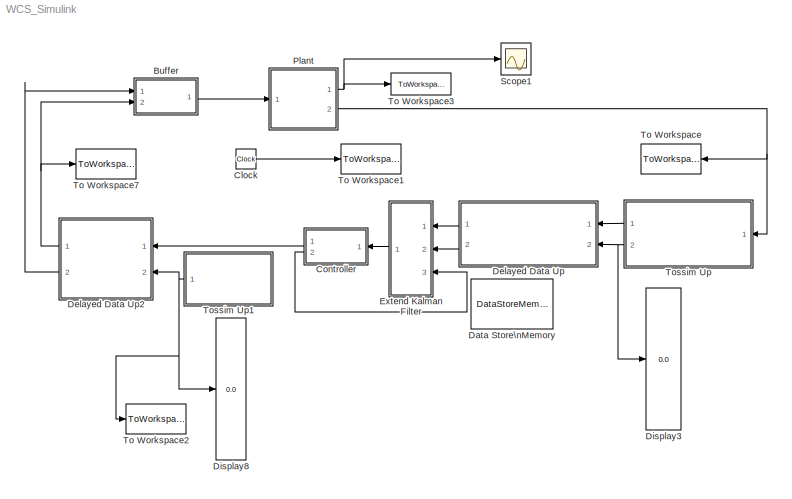
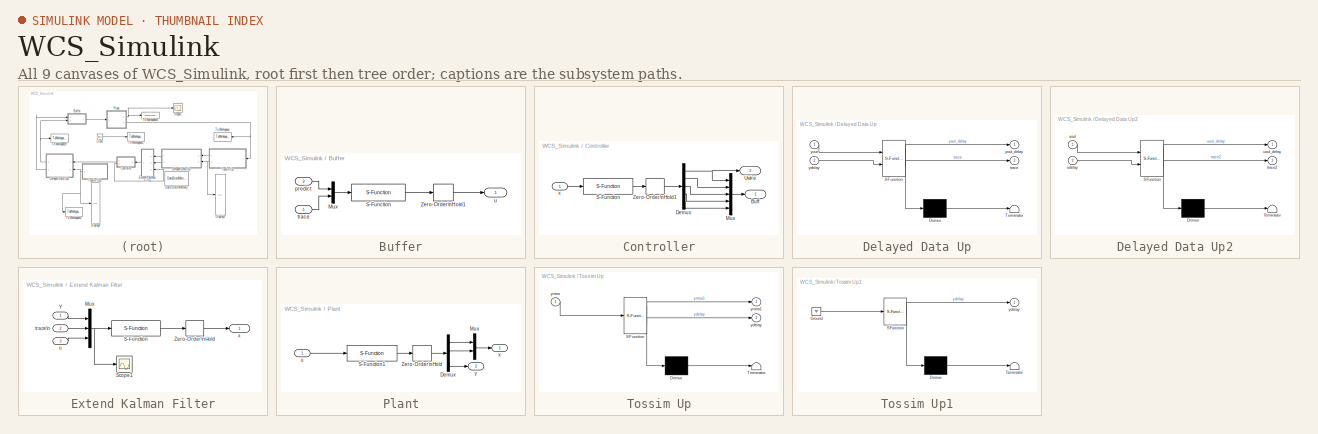
[diagram: thumbnail index - all 9 canvases of the model, root first then tree order]
MODEL WCS_Simulink
KIND model
BLOCK [SubSystem] Buffer
  FunctionWithSeparateData = off
  MaskHideContents = off
  MinAlgLoopOccurrences = off
  Opaque = off
  Ports = [2, 1]
  PropExecContextOutsideSubsystem = off
  RTWSystemCode = Auto
  RequestExecContextInheritance = off
  SID = 448
BLOCK [Mux] Buffer/Mux
  DisplayOption = bar
  Inputs = 2
  Ports = [2, 1]
  SID = 454
BLOCK [S-Function] Buffer/S-Function
  EnableBusSupport = off
  FunctionName = buffsfun
  Ports = [1, 1]
  SID = 450
BLOCK [ZeroOrderHold] Buffer/Zero-Order\nHold1
  SID = 451
  SampleTime = delta_t
BLOCK [Inport] Buffer/predict
  IconDisplay = Port number
  Port = 2
  SID = 449
BLOCK [Inport] Buffer/trace
  IconDisplay = Port number
  SID = 453
BLOCK [Outport] Buffer/u
  IconDisplay = Port number
  SID = 452
BLOCK [Clock] Clock
  SID = 163
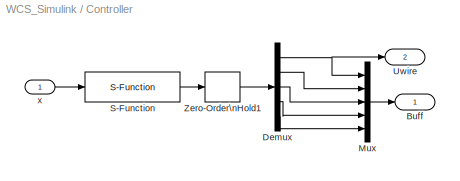
BLOCK [SubSystem] Controller
  FunctionWithSeparateData = off
  MaskHideContents = off
  MinAlgLoopOccurrences = off
  Opaque = off
  Ports = [1, 2]
  PropExecContextOutsideSubsystem = off
  RTWSystemCode = Auto
  RequestExecContextInheritance = off
  SID = 423
BLOCK [Outport] Controller/Buff
  IconDisplay = Port number
  SID = 445
BLOCK [Demux] Controller/Demux
  DisplayOption = bar
  Outputs = 5
  Ports = [1, 5]
  SID = 446
BLOCK [Mux] Controller/Mux
  DisplayOption = bar
  Inputs = 5
  Ports = [5, 1]
  SID = 447
BLOCK [S-Function] Controller/S-Function
  EnableBusSupport = off
  FunctionName = MPCControllersfun
  Parameters = A,B,C,T,uini,Xsp,delta_t
  Ports = [1, 1]
  SID = 426
BLOCK [Outport] Controller/Uwire
  IconDisplay = Port number
  Port = 2
  SID = 429
BLOCK [ZeroOrderHold] Controller/Zero-Order\nHold1
  SID = 428
  SampleTime = delta_t
BLOCK [Inport] Controller/x
  IconDisplay = Port number
  SID = 424
BLOCK [DataStoreMemory] Data Store\nMemory
  DataStoreName = ydelay_global
  InitialValue = [1; 1; 1; 1; 1; 1; 1; 1; 1; 1; 1; 1; 1; 1; 1]
  OutDataTypeStr = uint32
  ReadBeforeWriteMsg = warning
  SID = 294
  SignalType = real
  WriteAfterReadMsg = warning
  WriteAfterWriteMsg = warning
BLOCK [SubSystem] Delayed Data Up
  ErrorFcn = Stateflow.Translate.translate
  FunctionWithSeparateData = off
  MaskHideContents = off
  MinAlgLoopOccurrences = off
  Opaque = off
  PermitHierarchicalResolution = ExplicitOnly
  Ports = [2, 2]
  PropExecContextOutsideSubsystem = off
  RTWSystemCode = Auto
  RequestExecContextInheritance = off
  SFBlockType = MATLAB Function
  SID = 193
  TreatAsAtomicUnit = on
BLOCK [Demux] Delayed Data Up/ Demux 
  Outputs = 1
  Ports = [1, 1]
  SID = 193::39
BLOCK [S-Function] Delayed Data Up/ SFunction 
  EnableBusSupport = on
  FunctionName = sf_sfun
  Parameters = structure
  PortCounts = [2 3]
  Ports = [2, 3]
  SID = 193::38
  Tag = Stateflow S-Function WCS_Simulink 2
BLOCK [Terminator] Delayed Data Up/ Terminator 
  SID = 193::40
BLOCK [Outport] Delayed Data Up/trace
  IconDisplay = Port number
  Port = 2
  SID = 193::41
BLOCK [Inport] Delayed Data Up/ydelay
  IconDisplay = Port number
  Port = 2
  SID = 193::24
BLOCK [Inport] Delayed Data Up/yout
  IconDisplay = Port number
  SID = 193::1
BLOCK [Outport] Delayed Data Up/yout_delay
  IconDisplay = Port number
  SID = 193::5
BLOCK [SubSystem] Delayed Data Up2
  ErrorFcn = Stateflow.Translate.translate
  FunctionWithSeparateData = off
  MaskHideContents = off
  MinAlgLoopOccurrences = off
  Opaque = off
  PermitHierarchicalResolution = ExplicitOnly
  Ports = [2, 2]
  PropExecContextOutsideSubsystem = off
  RTWSystemCode = Auto
  RequestExecContextInheritance = off
  SFBlockType = MATLAB Function
  SID = 291
  TreatAsAtomicUnit = on
BLOCK [Demux] Delayed Data Up2/ Demux 
  Outputs = 1
  Ports = [1, 1]
  SID = 291::43
BLOCK [S-Function] Delayed Data Up2/ SFunction 
  EnableBusSupport = on
  FunctionName = sf_sfun
  PortCounts = [2 3]
  Ports = [2, 3]
  SID = 291::42
  Tag = Stateflow S-Function WCS_Simulink 4
BLOCK [Terminator] Delayed Data Up2/ Terminator 
  SID = 291::44
BLOCK [Outport] Delayed Data Up2/trace2
  IconDisplay = Port number
  Port = 2
  SID = 291::45
BLOCK [Inport] Delayed Data Up2/udelay
  IconDisplay = Port number
  Port = 2
  SID = 291::34
BLOCK [Inport] Delayed Data Up2/uout
  IconDisplay = Port number
  SID = 291::1
BLOCK [Outport] Delayed Data Up2/uout_delay
  IconDisplay = Port number
  SID = 291::5
BLOCK [Display] Display3
  Decimation = 1
  Lockdown = off
  Ports = [1]
  SID = 195
BLOCK [Display] Display8
  Decimation = 1
  Lockdown = off
  Ports = [1]
  SID = 295
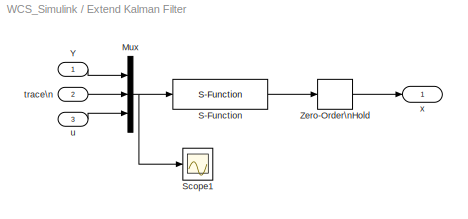
BLOCK [SubSystem] Extend Kalman Filter
  FunctionWithSeparateData = off
  MaskHideContents = off
  MinAlgLoopOccurrences = off
  Opaque = off
  Ports = [3, 1]
  PropExecContextOutsideSubsystem = off
  RTWSystemCode = Auto
  RequestExecContextInheritance = off
  SID = 415
BLOCK [Mux] Extend Kalman Filter/Mux
  DisplayOption = bar
  Inputs = 3
  Ports = [3, 1]
  SID = 418
BLOCK [S-Function] Extend Kalman Filter/S-Function
  EnableBusSupport = off
  FunctionName = EKFsfun
  Parameters = A,B,C,T,delta_t
  Ports = [1, 1]
  SID = 419
BLOCK [Scope] Extend Kalman Filter/Scope1
  DataFormat = StructureWithTime
  Floating = off
  NumInputPorts = 1
  Ports = [1]
  SID = 420
  SampleTime = 0
  SaveName = ScopeData2
  ShowLegends = off
BLOCK [Inport] Extend Kalman Filter/Y
  IconDisplay = Port number
  SID = 416
BLOCK [ZeroOrderHold] Extend Kalman Filter/Zero-Order\nHold
  SID = 421
  SampleTime = delta_t
BLOCK [Inport] Extend Kalman Filter/trace\n
  IconDisplay = Port number
  Port = 2
  SID = 432
BLOCK [Inport] Extend Kalman Filter/u
  IconDisplay = Port number
  Port = 3
  SID = 417
BLOCK [Outport] Extend Kalman Filter/x
  IconDisplay = Port number
  SID = 422
BLOCK [SubSystem] Plant
  FunctionWithSeparateData = off
  MaskHideContents = off
  MinAlgLoopOccurrences = off
  Opaque = off
  Ports = [1, 2]
  PropExecContextOutsideSubsystem = off
  RTWSystemCode = Auto
  RequestExecContextInheritance = off
  SID = 405
BLOCK [Demux] Plant/Demux
  DisplayOption = bar
  Outputs = 3
  Ports = [1, 3]
  SID = 407
BLOCK [Mux] Plant/Mux
  DisplayOption = bar
  Inputs = 2
  Ports = [2, 1]
  SID = 408
BLOCK [S-Function] Plant/S-Function1
  EnableBusSupport = off
  FunctionName = LinearModelSfun
  Parameters = A,B,C,T,Xini
  Ports = [1, 1]
  SID = 409
BLOCK [ZeroOrderHold] Plant/Zero-Order\nHold
  SID = 410
  SampleTime = delta_t
BLOCK [Inport] Plant/u
  IconDisplay = Port number
  SID = 406
BLOCK [Outport] Plant/x
  IconDisplay = Port number
  SID = 411
BLOCK [Outport] Plant/y
  IconDisplay = Port number
  Port = 2
  SID = 412
BLOCK [Scope] Scope1
  DataFormat = StructureWithTime
  Floating = off
  NumInputPorts = 1
  Ports = [1]
  SID = 413
  SampleTime = 0
  SaveName = ScopeData1
  ShowLegends = off
BLOCK [ToWorkspace] To Workspace
  MaxDataPoints = inf
  Ports = [1]
  SID = 348
  SampleTime = -1
  VariableName = YOUT
BLOCK [ToWorkspace] To Workspace1
  MaxDataPoints = inf
  Ports = [1]
  SID = 164
  SampleTime = -1
  VariableName = TIME
BLOCK [ToWorkspace] To Workspace2
  MaxDataPoints = inf
  Ports = [1]
  SID = 455
  SampleTime = -1
  VariableName = TRACE
BLOCK [ToWorkspace] To Workspace3
  MaxDataPoints = inf
  Ports = [1]
  SID = 414
  SampleTime = -1
  VariableName = XOUT
BLOCK [ToWorkspace] To Workspace7
  MaxDataPoints = inf
  Ports = [1]
  SID = 352
  SampleTime = -1
  VariableName = UOUT
BLOCK [SubSystem] Tossim Up
  ErrorFcn = Stateflow.Translate.translate
  FunctionWithSeparateData = off
  MaskHideContents = off
  MinAlgLoopOccurrences = off
  Opaque = off
  PermitHierarchicalResolution = ExplicitOnly
  Ports = [1, 2]
  PropExecContextOutsideSubsystem = off
  RTWSystemCode = Auto
  RequestExecContextInheritance = off
  SFBlockType = MATLAB Function
  SID = 194
  TreatAsAtomicUnit = on
BLOCK [Demux] Tossim Up/ Demux 
  Outputs = 1
  Ports = [1, 1]
  SID = 194::37
BLOCK [S-Function] Tossim Up/ SFunction 
  EnableBusSupport = on
  FunctionName = sf_sfun
  PortCounts = [1 3]
  Ports = [1, 3]
  SID = 194::36
  Tag = Stateflow S-Function WCS_Simulink 1
BLOCK [Terminator] Tossim Up/ Terminator 
  SID = 194::38
BLOCK [Outport] Tossim Up/ydelay
  IconDisplay = Port number
  Port = 2
  SID = 194::20
BLOCK [Inport] Tossim Up/ymea
  IconDisplay = Port number
  SID = 194::1
BLOCK [Outport] Tossim Up/ymea1
  IconDisplay = Port number
  SID = 194::22
BLOCK [SubSystem] Tossim Up1
  ErrorFcn = Stateflow.Translate.translate
  FunctionWithSeparateData = off
  MaskHideContents = off
  MinAlgLoopOccurrences = off
  Opaque = off
  PermitHierarchicalResolution = ExplicitOnly
  Ports = [0, 1]
  PropExecContextOutsideSubsystem = off
  RTWSystemCode = Auto
  RequestExecContextInheritance = off
  SFBlockType = MATLAB Function
  SID = 292
  TreatAsAtomicUnit = on
BLOCK [Demux] Tossim Up1/ Demux 
  Outputs = 1
  Ports = [1, 1]
  SID = 292::38
BLOCK [Ground] Tossim Up1/ Ground 
  SID = 292::42
BLOCK [S-Function] Tossim Up1/ SFunction 
  EnableBusSupport = on
  FunctionName = sf_sfun
  PortCounts = [1 2]
  Ports = [1, 2]
  SID = 292::37
  Tag = Stateflow S-Function WCS_Simulink 5
BLOCK [Terminator] Tossim Up1/ Terminator 
  SID = 292::39
BLOCK [Outport] Tossim Up1/ydelay
  IconDisplay = Port number
  SID = 292::20
LINE Buffer/Mux:1 -> Buffer/S-Function:1
LINE Buffer/S-Function:1 -> Buffer/Zero-Order\nHold1:1
LINE Buffer/Zero-Order\nHold1:1 -> Buffer/u:1
LINE Buffer/predict:1 -> Buffer/Mux:1
LINE Buffer/trace:1 -> Buffer/Mux:2
LINE Buffer:1 -> Plant:1
LINE Clock:1 -> To Workspace1:1
NET Controller/Demux:1 -> Controller/Mux:1, Controller/Uwire:1
LINE Controller/Demux:2 -> Controller/Mux:2
LINE Controller/Demux:3 -> Controller/Mux:3
LINE Controller/Demux:4 -> Controller/Mux:4
LINE Controller/Demux:5 -> Controller/Mux:5
LINE Controller/Mux:1 -> Controller/Buff:1
LINE Controller/S-Function:1 -> Controller/Zero-Order\nHold1:1
LINE Controller/Zero-Order\nHold1:1 -> Controller/Demux:1
LINE Controller/x:1 -> Controller/S-Function:1
LINE Controller:1 -> Delayed Data Up2:1
LINE Controller:2 -> Extend Kalman Filter:3
LINE Delayed Data Up/ Demux :1 -> Delayed Data Up/ Terminator :1
LINE Delayed Data Up/ SFunction :1 -> Delayed Data Up/ Demux :1
LINE Delayed Data Up/ SFunction :2 -> Delayed Data Up/yout_delay:1
LINE Delayed Data Up/ SFunction :3 -> Delayed Data Up/trace:1
LINE Delayed Data Up/ydelay:1 -> Delayed Data Up/ SFunction :2
LINE Delayed Data Up/yout:1 -> Delayed Data Up/ SFunction :1
LINE Delayed Data Up2/ Demux :1 -> Delayed Data Up2/ Terminator :1
LINE Delayed Data Up2/ SFunction :1 -> Delayed Data Up2/ Demux :1
LINE Delayed Data Up2/ SFunction :2 -> Delayed Data Up2/uout_delay:1
LINE Delayed Data Up2/ SFunction :3 -> Delayed Data Up2/trace2:1
LINE Delayed Data Up2/udelay:1 -> Delayed Data Up2/ SFunction :2
LINE Delayed Data Up2/uout:1 -> Delayed Data Up2/ SFunction :1
NET Delayed Data Up2:1 -> Buffer:2, To Workspace7:1
LINE Delayed Data Up2:2 -> Buffer:1
LINE Delayed Data Up:1 -> Extend Kalman Filter:1
LINE Delayed Data Up:2 -> Extend Kalman Filter:2
NET Extend Kalman Filter/Mux:1 -> Extend Kalman Filter/S-Function:1, Extend Kalman Filter/Scope1:1
LINE Extend Kalman Filter/S-Function:1 -> Extend Kalman Filter/Zero-Order\nHold:1
LINE Extend Kalman Filter/Y:1 -> Extend Kalman Filter/Mux:1
LINE Extend Kalman Filter/Zero-Order\nHold:1 -> Extend Kalman Filter/x:1
LINE Extend Kalman Filter/trace\n:1 -> Extend Kalman Filter/Mux:2
LINE Extend Kalman Filter/u:1 -> Extend Kalman Filter/Mux:3
LINE Extend Kalman Filter:1 -> Controller:1
LINE Plant/Demux:1 -> Plant/Mux:1
LINE Plant/Demux:2 -> Plant/Mux:2
LINE Plant/Demux:3 -> Plant/y:1
LINE Plant/Mux:1 -> Plant/x:1
LINE Plant/S-Function1:1 -> Plant/Zero-Order\nHold:1
LINE Plant/Zero-Order\nHold:1 -> Plant/Demux:1
LINE Plant/u:1 -> Plant/S-Function1:1
NET Plant:1 -> Scope1:1, To Workspace3:1
NET Plant:2 -> To Workspace:1, Tossim Up:1
LINE Tossim Up/ Demux :1 -> Tossim Up/ Terminator :1
LINE Tossim Up/ SFunction :1 -> Tossim Up/ Demux :1
LINE Tossim Up/ SFunction :2 -> Tossim Up/ymea1:1
LINE Tossim Up/ SFunction :3 -> Tossim Up/ydelay:1
LINE Tossim Up/ymea:1 -> Tossim Up/ SFunction :1
LINE Tossim Up1/ Demux :1 -> Tossim Up1/ Terminator :1
LINE Tossim Up1/ Ground :1 -> Tossim Up1/ SFunction :1
LINE Tossim Up1/ SFunction :1 -> Tossim Up1/ Demux :1
LINE Tossim Up1/ SFunction :2 -> Tossim Up1/ydelay:1
NET Tossim Up1:1 -> Delayed Data Up2:2, Display8:1, To Workspace2:1
LINE Tossim Up:1 -> Delayed Data Up:1
NET Tossim Up:2 -> Delayed Data Up:2, Display3:1
note: NET lines group one-source signal fan-out (src -> all destinations, sorted); 1:1 wires keep LINE
CHART Tossim Up states=1 transitions=1
  STATE_LABEL 'eML_blk_kernel()'
CHART Delayed Data Up states=1 transitions=1
  STATE_LABEL 'eML_blk_kernel()'
CHART Delayed Data Up2 states=1 transitions=1
  STATE_LABEL 'eML_blk_kernel()'
CHART Tossim Up1 states=1 transitions=1
  STATE_LABEL 'eML_blk_kernel()'
